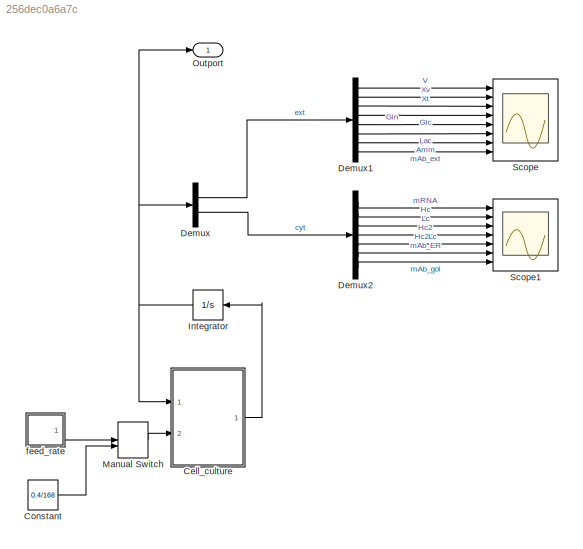
MODEL slx_256dec0a6a7c
KIND model
CONFIG AbsTol = auto
CONFIG EnableMultiTasking = off
CONFIG FixedStep = auto
CONFIG MaxStep = auto
CONFIG MinStep = auto
CONFIG RelTol = 1e-3
CONFIG SampleTimeConstraint = Unconstrained
CONFIG SolverName = VariableStepAuto
CONFIG StartTime = 0.0
CONFIG StopTime = 168
WORKSPACE source: mxarray member
WORKSPACE Q_in = [0.12271780758 0.123470790595 0.124228393831 0.124990645638 0.125757574538 0.12652920923 0.127305578587]
WORKSPACE Sig: Simulink.Signal (value not decoded)
WORKSPACE x0 = [0.2 200000000 200000000 25.1 5.01 0 0 100 0 0 0 0 ... (16 elements, 16x1)]
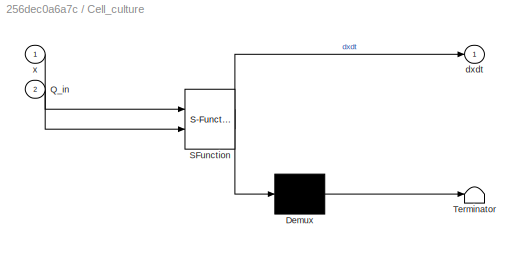
BLOCK [SubSystem] Cell_culture
  ErrorFcn = Stateflow.Translate.translate
  PermitHierarchicalResolution = ExplicitOnly
  Ports = [2, 1]
  RequestExecContextInheritance = off
  SFBlockType = MATLAB Function
  TreatAsAtomicUnit = on
BLOCK [Demux] Cell_culture/ Demux 
  Outputs = 1
  Ports = [1, 1]
BLOCK [S-Function] Cell_culture/ SFunction 
  EnableBusSupport = on
  FunctionName = sf_sfun
  PortCounts = [2 2]
  Ports = [2, 2]
  SFcnIsStateOwnerBlock = off
  SFunctionDeploymentMode = off
  Tag = Stateflow S-Function 3
BLOCK [Terminator] Cell_culture/ Terminator 
BLOCK [Inport] Cell_culture/Q_in
  Port = 2
BLOCK [Outport] Cell_culture/dxdt
  VectorParamsAs1DForOutWhenUnconnected = off
BLOCK [Inport] Cell_culture/x
BLOCK [Constant] Constant
  Value = 0.4/168
BLOCK [Demux] Demux
  Outputs = [8 8]
  Ports = [1, 2]
BLOCK [Demux] Demux1
  Outputs = 8
  Ports = [1, 8]
BLOCK [Demux] Demux2
  Outputs = [2 1 1 1 1 1 1]
  Ports = [1, 7]
BLOCK [Integrator] Integrator
  InitialCondition = x0
  LimitOutput = on
  LowerSaturationLimit = 0
  Ports = [1, 1]
BLOCK [ManualSwitch] Manual Switch
  CurrentSetting = 0
BLOCK [Outport] Outport
BLOCK [Scope] Scope
  Floating = off
  NumInputPorts = 8
  Ports = [8]
  ScopeSpecificationString = Simulink.scopes.TimeScopeBlockCfg('CurrentConfiguration', extmgr.ConfigurationSet(extmgr.Configuration('Core','General UI',true),extmgr.Configuration('Core','Source UI',true),extmgr.Configuration('Sources','WiredSimulink',true,'DataLoggingVariableName','ScopeData1'),extmgr.Configuration('Visuals','Time Domain',true,'SerializedDisplays',{struct('MinYLimReal','0.19891','MaxYLimReal','0.20984','YLabe...<+7109ch>
BLOCK [Scope] Scope1
  Floating = off
  NumInputPorts = 7
  Ports = [7]
  ScopeSpecificationString = Simulink.scopes.TimeScopeBlockCfg('CurrentConfiguration', extmgr.ConfigurationSet(extmgr.Configuration('Core','General UI',true),extmgr.Configuration('Core','Source UI',true),extmgr.Configuration('Sources','WiredSimulink',true,'DataLoggingVariableName','ScopeData1'),extmgr.Configuration('Visuals','Time Domain',true,'SerializedDisplays',{struct('MinYLimReal','-562499.9741','MaxYLimReal','5062499.76...<+6658ch>
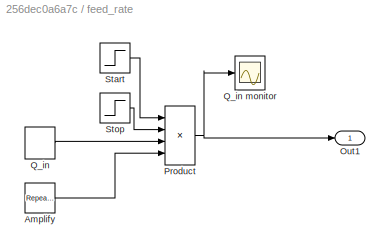
BLOCK [SubSystem] feed_rate
  Ports = [0, 1]
  RequestExecContextInheritance = off
BLOCK [Reference] feed_rate/Amplify  REF=simulink/Sources/Repeating
Sequence
Stair
  Ports = [0, 1]
  SourceBlock = simulink/Sources/Repeating\nSequence\nStair
  SourceProductBaseCode = SL
  SourceType = Repeating Sequence Stair
BLOCK [Outport] feed_rate/Out1
BLOCK [Product] feed_rate/Product
  Inputs = 4
  Ports = [4, 1]
BLOCK [DiscretePulseGenerator] feed_rate/Q_in
  Period = 24
  PhaseDelay = 12
  Ports = [0, 1]
  PulseType = Time based
  PulseWidth = 1/24
BLOCK [Scope] feed_rate/Q_in monitor
  Floating = off
  NumInputPorts = 1
  Ports = [1]
  ScopeSpecificationString = Simulink.scopes.TimeScopeBlockCfg('CurrentConfiguration', extmgr.ConfigurationSet(extmgr.Configuration('Core','General UI',true),extmgr.Configuration('Core','Source UI',true),extmgr.Configuration('Sources','WiredSimulink',true,'DataLoggingVariableName','ScopeData1'),extmgr.Configuration('Visuals','Time Domain',true,'SerializedDisplays',{struct('MinYLimReal','-0.00079','MaxYLimReal','0.00707','YLab...<+1471ch>
BLOCK [Step] feed_rate/Start
  SampleTime = 0
BLOCK [Step] feed_rate/Stop
  After = 0
  Before = 1
  SampleTime = 0
  Time = 169
LINE Cell_culture:1 -> Integrator:1
LINE Constant:1 -> Manual Switch:2
LINE Demux1:1 -> Scope:1
LINE Demux1:2 -> Scope:2
LINE Demux1:3 -> Scope:3
LINE Demux1:4 -> Scope:4
LINE Demux1:5 -> Scope:5
LINE Demux1:6 -> Scope:6
LINE Demux1:7 -> Scope:7
LINE Demux1:8 -> Scope:8
LINE Demux2:1 -> Scope1:1
LINE Demux2:2 -> Scope1:2
LINE Demux2:3 -> Scope1:3
LINE Demux2:4 -> Scope1:4
LINE Demux2:5 -> Scope1:5
LINE Demux2:6 -> Scope1:6
LINE Demux2:7 -> Scope1:7
LINE Demux:1 -> Demux1:1
LINE Demux:2 -> Demux2:1
NET Integrator:1 -> Cell_culture:1, Demux:1, Outport:1
LINE Manual Switch:1 -> Cell_culture:2
LINE feed_rate/Amplify:1 -> feed_rate/Product:4
NET feed_rate/Product:1 -> feed_rate/Out1:1, feed_rate/Q_in monitor:1
LINE feed_rate/Q_in:1 -> feed_rate/Product:3
LINE feed_rate/Start:1 -> feed_rate/Product:1
LINE feed_rate/Stop:1 -> feed_rate/Product:2
LINE feed_rate:1 -> Manual Switch:1
note: NET lines group one-source signal fan-out (src -> all destinations, sorted); 1:1 wires keep LINE
CHART Cell_culture states=1 transitions=1
  STATE_LABEL 'eML_blk_kernel()'
  STATE_LABEL 'SCRIPT:\nfunction dxdt = fcn(x,Q_in)\ndxdt = Kontoravdi2010StateFcn(x,Q_in);\nend'
CHART  states=0 transitions=0
